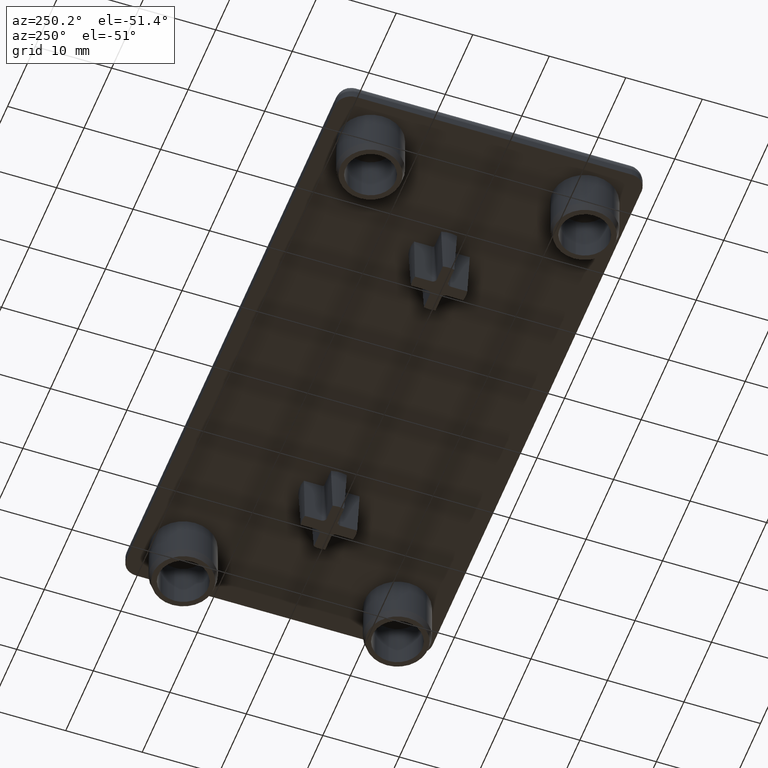
[diagram: clean part render]
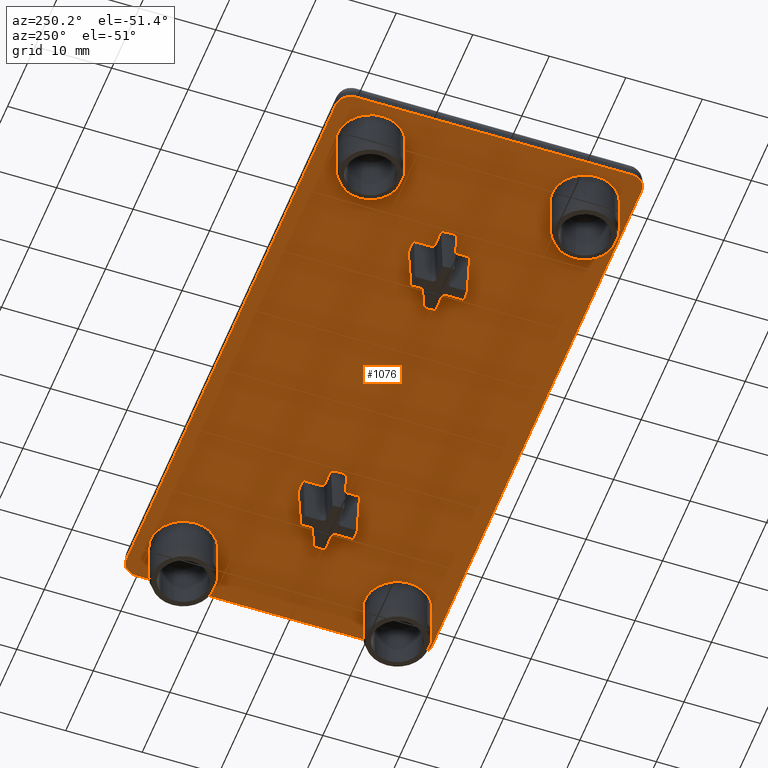
[diagram: same view with one face highlighted and labeled with its STEP entity id]
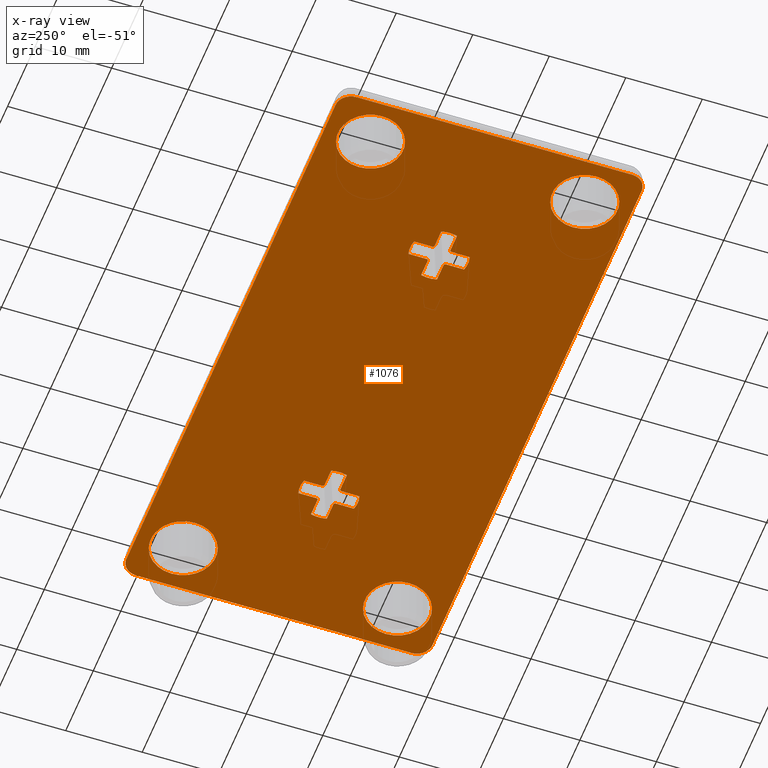
[diagram: x-ray of the same camera — body ghosted, the highlighted face saturated]
A machine part, auxiliary view. The second image highlights one B-rep face of the part: STEP entity #1076.
The next image is the same camera in x-ray: the body ghosted, the highlighted face saturated — about 0% of this face is hidden behind the body in this view.
In plain terms, the highlighted planar face has unit normal (0, 0, 1).
Its self-contained STEP definition (entity closure, byte-faithful):
#40=LINE('',#1699,#108);
#41=LINE('',#1703,#109);
#42=LINE('',#1707,#110);
#43=LINE('',#1710,#111);
#44=LINE('',#1713,#112);
#45=LINE('',#1717,#113);
#46=LINE('',#1721,#114);
#47=LINE('',#1725,#115);
#48=LINE('',#1729,#116);
#49=LINE('',#1733,#117);
#50=LINE('',#1737,#118);
#51=LINE('',#1741,#119);
#52=LINE('',#1747,#120);
#53=LINE('',#1751,#121);
#54=LINE('',#1755,#122);
#55=LINE('',#1759,#123);
#56=LINE('',#1763,#124);
#57=LINE('',#1767,#125);
#58=LINE('',#1771,#126);
#59=LINE('',#1774,#127);
#108=VECTOR('',#1366,36.);
#109=VECTOR('',#1369,76.);
#110=VECTOR('',#1372,36.);
#111=VECTOR('',#1375,76.);
#112=VECTOR('',#1376,2.38983223637839);
#113=VECTOR('',#1379,2.38983223637839);
#114=VECTOR('',#1382,2.38983223637839);
#115=VECTOR('',#1385,2.38983223637839);
#116=VECTOR('',#1388,2.38983223637839);
#117=VECTOR('',#1391,2.38983223637839);
#118=VECTOR('',#1394,2.38983223637839);
#119=VECTOR('',#1397,2.38983223637839);
#120=VECTOR('',#1402,2.38983223637839);
#121=VECTOR('',#1405,2.38983223637839);
#122=VECTOR('',#1408,2.38983223637839);
#123=VECTOR('',#1411,2.38983223637839);
#124=VECTOR('',#1414,2.38983223637839);
#125=VECTOR('',#1417,2.38983223637839);
#126=VECTOR('',#1420,2.38983223637839);
#127=VECTOR('',#1423,2.38983223637839);
#179=PLANE('',#1172);
#235=FACE_BOUND('',#351,.T.);
#236=FACE_BOUND('',#352,.T.);
#237=FACE_BOUND('',#353,.T.);
#238=FACE_BOUND('',#354,.T.);
#239=FACE_BOUND('',#355,.T.);
#240=FACE_BOUND('',#356,.T.);
#262=FACE_OUTER_BOUND('',#350,.T.);
#350=EDGE_LOOP('',(#774,#775,#776,#777,#778,#779,#780,#781));
#351=EDGE_LOOP('',(#782));
#352=EDGE_LOOP('',(#783));
#353=EDGE_LOOP('',(#784));
#354=EDGE_LOOP('',(#785,#786,#787,#788,#789,#790,#791,#792,#793,#794,#795,
#796,#797,#798,#799,#800));
#355=EDGE_LOOP('',(#801,#802,#803,#804,#805,#806,#807,#808,#809,#810,#811,
#812,#813,#814,#815,#816));
#356=EDGE_LOOP('',(#817));
#409=CIRCLE('',#1133,4.25);
#414=CIRCLE('',#1142,4.25);
#419=CIRCLE('',#1151,4.25);
#424=CIRCLE('',#1163,4.25);
#429=CIRCLE('',#1173,2.);
#430=CIRCLE('',#1174,2.);
#431=CIRCLE('',#1175,2.);
#432=CIRCLE('',#1176,2.);
#433=CIRCLE('',#1177,0.216203871094672);
#434=CIRCLE('',#1178,3.78379612890533);
#435=CIRCLE('',#1179,0.216203871094672);
#436=CIRCLE('',#1180,3.78379612890533);
#437=CIRCLE('',#1181,0.216203871094672);
#438=CIRCLE('',#1182,3.78379612890533);
#439=CIRCLE('',#1183,0.216203871094672);
#440=CIRCLE('',#1184,3.78379612890533);
#441=CIRCLE('',#1185,3.78379612890533);
#442=CIRCLE('',#1186,0.216203871094672);
#443=CIRCLE('',#1187,3.78379612890533);
#444=CIRCLE('',#1188,0.216203871094672);
#445=CIRCLE('',#1189,3.78379612890533);
#446=CIRCLE('',#1190,0.216203871094672);
#447=CIRCLE('',#1191,3.78379612890533);
#448=CIRCLE('',#1192,0.216203871094672);
#477=VERTEX_POINT('',#1626);
#482=VERTEX_POINT('',#1640);
#487=VERTEX_POINT('',#1654);
#492=VERTEX_POINT('',#1671);
#501=VERTEX_POINT('',#1695);
#502=VERTEX_POINT('',#1696);
#503=VERTEX_POINT('',#1698);
#504=VERTEX_POINT('',#1700);
#505=VERTEX_POINT('',#1702);
#506=VERTEX_POINT('',#1704);
#507=VERTEX_POINT('',#1706);
#508=VERTEX_POINT('',#1708);
#509=VERTEX_POINT('',#1711);
#510=VERTEX_POINT('',#1712);
#511=VERTEX_POINT('',#1714);
#512=VERTEX_POINT('',#1716);
#513=VERTEX_POINT('',#1718);
#514=VERTEX_POINT('',#1720);
#515=VERTEX_POINT('',#1722);
#516=VERTEX_POINT('',#1724);
#517=VERTEX_POINT('',#1726);
#518=VERTEX_POINT('',#1728);
#519=VERTEX_POINT('',#1730);
#520=VERTEX_POINT('',#1732);
#521=VERTEX_POINT('',#1734);
#522=VERTEX_POINT('',#1736);
#523=VERTEX_POINT('',#1738);
#524=VERTEX_POINT('',#1740);
#525=VERTEX_POINT('',#1743);
#526=VERTEX_POINT('',#1744);
#527=VERTEX_POINT('',#1746);
#528=VERTEX_POINT('',#1748);
#529=VERTEX_POINT('',#1750);
#530=VERTEX_POINT('',#1752);
#531=VERTEX_POINT('',#1754);
#532=VERTEX_POINT('',#1756);
#533=VERTEX_POINT('',#1758);
#534=VERTEX_POINT('',#1760);
#535=VERTEX_POINT('',#1762);
#536=VERTEX_POINT('',#1764);
#537=VERTEX_POINT('',#1766);
#538=VERTEX_POINT('',#1768);
#539=VERTEX_POINT('',#1770);
#540=VERTEX_POINT('',#1772);
#581=EDGE_CURVE('',#477,#477,#409,.T.);
#586=EDGE_CURVE('',#482,#482,#414,.T.);
#591=EDGE_CURVE('',#487,#487,#419,.T.);
#596=EDGE_CURVE('',#492,#492,#424,.T.);
#606=EDGE_CURVE('',#501,#502,#429,.T.);
#607=EDGE_CURVE('',#501,#503,#40,.T.);
#608=EDGE_CURVE('',#504,#503,#430,.T.);
#609=EDGE_CURVE('',#504,#505,#41,.T.);
#610=EDGE_CURVE('',#506,#505,#431,.T.);
#611=EDGE_CURVE('',#506,#507,#42,.T.);
#612=EDGE_CURVE('',#508,#507,#432,.T.);
#613=EDGE_CURVE('',#508,#502,#43,.T.);
#614=EDGE_CURVE('',#509,#510,#44,.F.);
#615=EDGE_CURVE('',#510,#511,#433,.F.);
#616=EDGE_CURVE('',#511,#512,#45,.F.);
#617=EDGE_CURVE('',#512,#513,#434,.F.);
#618=EDGE_CURVE('',#513,#514,#46,.F.);
#619=EDGE_CURVE('',#514,#515,#435,.F.);
#620=EDGE_CURVE('',#515,#516,#47,.F.);
#621=EDGE_CURVE('',#516,#517,#436,.F.);
#622=EDGE_CURVE('',#517,#518,#48,.F.);
#623=EDGE_CURVE('',#518,#519,#437,.F.);
#624=EDGE_CURVE('',#519,#520,#49,.F.);
#625=EDGE_CURVE('',#520,#521,#438,.F.);
#626=EDGE_CURVE('',#521,#522,#50,.F.);
#627=EDGE_CURVE('',#522,#523,#439,.F.);
#628=EDGE_CURVE('',#523,#524,#51,.F.);
#629=EDGE_CURVE('',#524,#509,#440,.F.);
#630=EDGE_CURVE('',#525,#526,#441,.F.);
#631=EDGE_CURVE('',#526,#527,#52,.F.);
#632=EDGE_CURVE('',#527,#528,#442,.F.);
#633=EDGE_CURVE('',#528,#529,#53,.F.);
#634=EDGE_CURVE('',#529,#530,#443,.F.);
#635=EDGE_CURVE('',#530,#531,#54,.F.);
#636=EDGE_CURVE('',#531,#532,#444,.F.);
#637=EDGE_CURVE('',#532,#533,#55,.F.);
#638=EDGE_CURVE('',#533,#534,#445,.F.);
#639=EDGE_CURVE('',#534,#535,#56,.F.);
#640=EDGE_CURVE('',#535,#536,#446,.F.);
#641=EDGE_CURVE('',#536,#537,#57,.F.);
#642=EDGE_CURVE('',#537,#538,#447,.F.);
#643=EDGE_CURVE('',#538,#539,#58,.F.);
#644=EDGE_CURVE('',#539,#540,#448,.F.);
#645=EDGE_CURVE('',#540,#525,#59,.F.);
#774=ORIENTED_EDGE('',*,*,#606,.F.);
#775=ORIENTED_EDGE('',*,*,#607,.T.);
#776=ORIENTED_EDGE('',*,*,#608,.F.);
#777=ORIENTED_EDGE('',*,*,#609,.T.);
#778=ORIENTED_EDGE('',*,*,#610,.F.);
#779=ORIENTED_EDGE('',*,*,#611,.T.);
#780=ORIENTED_EDGE('',*,*,#612,.F.);
#781=ORIENTED_EDGE('',*,*,#613,.T.);
#782=ORIENTED_EDGE('',*,*,#581,.T.);
#783=ORIENTED_EDGE('',*,*,#586,.T.);
#784=ORIENTED_EDGE('',*,*,#591,.T.);
#785=ORIENTED_EDGE('',*,*,#614,.T.);
#786=ORIENTED_EDGE('',*,*,#615,.T.);
#787=ORIENTED_EDGE('',*,*,#616,.T.);
#788=ORIENTED_EDGE('',*,*,#617,.T.);
#789=ORIENTED_EDGE('',*,*,#618,.T.);
#790=ORIENTED_EDGE('',*,*,#619,.T.);
#791=ORIENTED_EDGE('',*,*,#620,.T.);
#792=ORIENTED_EDGE('',*,*,#621,.T.);
#793=ORIENTED_EDGE('',*,*,#622,.T.);
#794=ORIENTED_EDGE('',*,*,#623,.T.);
#795=ORIENTED_EDGE('',*,*,#624,.T.);
#796=ORIENTED_EDGE('',*,*,#625,.T.);
#797=ORIENTED_EDGE('',*,*,#626,.T.);
#798=ORIENTED_EDGE('',*,*,#627,.T.);
#799=ORIENTED_EDGE('',*,*,#628,.T.);
#800=ORIENTED_EDGE('',*,*,#629,.T.);
#801=ORIENTED_EDGE('',*,*,#630,.T.);
#802=ORIENTED_EDGE('',*,*,#631,.T.);
#803=ORIENTED_EDGE('',*,*,#632,.T.);
#804=ORIENTED_EDGE('',*,*,#633,.T.);
#805=ORIENTED_EDGE('',*,*,#634,.T.);
#806=ORIENTED_EDGE('',*,*,#635,.T.);
#807=ORIENTED_EDGE('',*,*,#636,.T.);
#808=ORIENTED_EDGE('',*,*,#637,.T.);
#809=ORIENTED_EDGE('',*,*,#638,.T.);
#810=ORIENTED_EDGE('',*,*,#639,.T.);
#811=ORIENTED_EDGE('',*,*,#640,.T.);
#812=ORIENTED_EDGE('',*,*,#641,.T.);
#813=ORIENTED_EDGE('',*,*,#642,.T.);
#814=ORIENTED_EDGE('',*,*,#643,.T.);
#815=ORIENTED_EDGE('',*,*,#644,.T.);
#816=ORIENTED_EDGE('',*,*,#645,.T.);
#817=ORIENTED_EDGE('',*,*,#596,.T.);
#1076=ADVANCED_FACE('',(#262,#235,#236,#237,#238,#239,#240),#179,.F.);
#1133=AXIS2_PLACEMENT_3D('',#1627,#1279,#1280);
#1142=AXIS2_PLACEMENT_3D('',#1641,#1297,#1298);
#1151=AXIS2_PLACEMENT_3D('',#1655,#1315,#1316);
#1163=AXIS2_PLACEMENT_3D('',#1672,#1339,#1340);
#1172=AXIS2_PLACEMENT_3D('',#1694,#1362,#1363);
#1173=AXIS2_PLACEMENT_3D('',#1697,#1364,#1365);
#1174=AXIS2_PLACEMENT_3D('',#1701,#1367,#1368);
#1175=AXIS2_PLACEMENT_3D('',#1705,#1370,#1371);
#1176=AXIS2_PLACEMENT_3D('',#1709,#1373,#1374);
#1177=AXIS2_PLACEMENT_3D('',#1715,#1377,#1378);
#1178=AXIS2_PLACEMENT_3D('',#1719,#1380,#1381);
#1179=AXIS2_PLACEMENT_3D('',#1723,#1383,#1384);
#1180=AXIS2_PLACEMENT_3D('',#1727,#1386,#1387);
#1181=AXIS2_PLACEMENT_3D('',#1731,#1389,#1390);
#1182=AXIS2_PLACEMENT_3D('',#1735,#1392,#1393);
#1183=AXIS2_PLACEMENT_3D('',#1739,#1395,#1396);
#1184=AXIS2_PLACEMENT_3D('',#1742,#1398,#1399);
#1185=AXIS2_PLACEMENT_3D('',#1745,#1400,#1401);
#1186=AXIS2_PLACEMENT_3D('',#1749,#1403,#1404);
#1187=AXIS2_PLACEMENT_3D('',#1753,#1406,#1407);
#1188=AXIS2_PLACEMENT_3D('',#1757,#1409,#1410);
#1189=AXIS2_PLACEMENT_3D('',#1761,#1412,#1413);
#1190=AXIS2_PLACEMENT_3D('',#1765,#1415,#1416);
#1191=AXIS2_PLACEMENT_3D('',#1769,#1418,#1419);
#1192=AXIS2_PLACEMENT_3D('',#1773,#1421,#1422);
#1279=DIRECTION('center_axis',(0.,0.,1.));
#1280=DIRECTION('ref_axis',(-1.,0.,0.));
#1297=DIRECTION('center_axis',(0.,0.,1.));
#1298=DIRECTION('ref_axis',(-1.,0.,0.));
#1315=DIRECTION('center_axis',(0.,0.,1.));
#1316=DIRECTION('ref_axis',(-1.,0.,0.));
#1339=DIRECTION('center_axis',(0.,0.,1.));
#1340=DIRECTION('ref_axis',(-1.,0.,0.));
#1362=DIRECTION('center_axis',(0.,0.,1.));
#1363=DIRECTION('ref_axis',(1.,0.,0.));
#1364=DIRECTION('center_axis',(0.,0.,1.));
#1365=DIRECTION('ref_axis',(0.707106781186548,0.707106781186547,0.));
#1366=DIRECTION('',(1.11022302462516E-16,-1.,0.));
#1367=DIRECTION('center_axis',(0.,0.,1.));
#1368=DIRECTION('ref_axis',(0.707106781186548,-0.707106781186547,0.));
#1369=DIRECTION('',(-1.,-1.11022302462516E-16,0.));
#1370=DIRECTION('center_axis',(0.,0.,1.));
#1371=DIRECTION('ref_axis',(-0.707106781186548,-0.707106781186547,0.));
#1372=DIRECTION('',(1.11022302462516E-16,1.,0.));
#1373=DIRECTION('center_axis',(0.,0.,1.));
#1374=DIRECTION('ref_axis',(-0.707106781186548,0.707106781186547,0.));
#1375=DIRECTION('',(1.,2.77555756156289E-16,0.));
#1376=DIRECTION('',(0.,-1.,0.));
#1377=DIRECTION('center_axis',(0.,0.,1.));
#1378=DIRECTION('ref_axis',(0.,-1.,0.));
#1379=DIRECTION('',(-1.,0.,0.));
#1380=DIRECTION('center_axis',(0.,0.,-1.));
#1381=DIRECTION('ref_axis',(1.,0.,0.));
#1382=DIRECTION('',(1.,-6.39913168105322E-17,0.));
#1383=DIRECTION('center_axis',(0.,0.,1.));
#1384=DIRECTION('ref_axis',(1.,0.,0.));
#1385=DIRECTION('',(0.,-1.,0.));
#1386=DIRECTION('center_axis',(0.,0.,-1.));
#1387=DIRECTION('ref_axis',(1.,0.,0.));
#1388=DIRECTION('',(0.,1.,0.));
#1389=DIRECTION('center_axis',(0.,0.,1.));
#1390=DIRECTION('ref_axis',(0.,1.,0.));
#1391=DIRECTION('',(1.,0.,0.));
#1392=DIRECTION('center_axis',(0.,0.,-1.));
#1393=DIRECTION('ref_axis',(1.,0.,0.));
#1394=DIRECTION('',(-1.,0.,0.));
#1395=DIRECTION('center_axis',(0.,0.,1.));
#1396=DIRECTION('ref_axis',(-1.,0.,0.));
#1397=DIRECTION('',(0.,1.,0.));
#1398=DIRECTION('center_axis',(0.,0.,-1.));
#1399=DIRECTION('ref_axis',(1.,0.,0.));
#1400=DIRECTION('center_axis',(0.,0.,-1.));
#1401=DIRECTION('ref_axis',(1.,0.,0.));
#1402=DIRECTION('',(0.,1.,0.));
#1403=DIRECTION('center_axis',(0.,0.,1.));
#1404=DIRECTION('ref_axis',(0.,1.,0.));
#1405=DIRECTION('',(1.,0.,0.));
#1406=DIRECTION('center_axis',(0.,0.,-1.));
#1407=DIRECTION('ref_axis',(1.,0.,0.));
#1408=DIRECTION('',(-1.,0.,0.));
#1409=DIRECTION('center_axis',(0.,0.,1.));
#1410=DIRECTION('ref_axis',(-1.,0.,0.));
#1411=DIRECTION('',(0.,1.,0.));
#1412=DIRECTION('center_axis',(0.,0.,-1.));
#1413=DIRECTION('ref_axis',(1.,0.,0.));
#1414=DIRECTION('',(0.,-1.,0.));
#1415=DIRECTION('center_axis',(0.,0.,1.));
#1416=DIRECTION('ref_axis',(0.,-1.,0.));
#1417=DIRECTION('',(-1.,0.,0.));
#1418=DIRECTION('center_axis',(0.,0.,-1.));
#1419=DIRECTION('ref_axis',(1.,0.,0.));
#1420=DIRECTION('',(1.,-6.39913168105322E-17,0.));
#1421=DIRECTION('center_axis',(0.,0.,1.));
#1422=DIRECTION('ref_axis',(1.,0.,0.));
#1423=DIRECTION('',(0.,-1.,0.));
#1626=CARTESIAN_POINT('',(-29.75,-14.,0.));
#1627=CARTESIAN_POINT('Origin',(-34.,-14.,0.));
#1640=CARTESIAN_POINT('',(38.25,-14.,0.));
#1641=CARTESIAN_POINT('Origin',(34.,-14.,0.));
#1654=CARTESIAN_POINT('',(-29.75,14.,0.));
#1655=CARTESIAN_POINT('Origin',(-34.,14.,0.));
#1671=CARTESIAN_POINT('',(38.25,14.,0.));
#1672=CARTESIAN_POINT('Origin',(34.,14.,0.));
#1694=CARTESIAN_POINT('Origin',(2.22044604925031E-15,-4.81096644004234E-15,
0.));
#1695=CARTESIAN_POINT('',(40.,18.,0.));
#1696=CARTESIAN_POINT('',(38.,20.,0.));
#1697=CARTESIAN_POINT('Origin',(38.,18.,0.));
#1698=CARTESIAN_POINT('',(40.,-18.,0.));
#1699=CARTESIAN_POINT('',(40.,20.,0.));
#1700=CARTESIAN_POINT('',(38.,-20.,0.));
#1701=CARTESIAN_POINT('Origin',(38.,-18.,0.));
#1702=CARTESIAN_POINT('',(-38.,-20.,0.));
#1703=CARTESIAN_POINT('',(40.,-20.,0.));
#1704=CARTESIAN_POINT('',(-40.,-18.,0.));
#1705=CARTESIAN_POINT('Origin',(-38.,-18.,0.));
#1706=CARTESIAN_POINT('',(-40.,18.,0.));
#1707=CARTESIAN_POINT('',(-40.,-20.,0.));
#1708=CARTESIAN_POINT('',(-38.,20.,0.));
#1709=CARTESIAN_POINT('Origin',(-38.,18.,0.));
#1710=CARTESIAN_POINT('',(-40.,20.,0.));
#1711=CARTESIAN_POINT('',(-18.9662038710947,-3.63983223637839,0.));
#1712=CARTESIAN_POINT('',(-18.9662038710947,-1.25,0.));
#1713=CARTESIAN_POINT('',(-18.9662038710947,-1.70934929139717,0.));
#1714=CARTESIAN_POINT('',(-18.75,-1.03379612890533,0.));
#1715=CARTESIAN_POINT('Origin',(-18.75,-1.25,0.));
#1716=CARTESIAN_POINT('',(-16.3601677636216,-1.03379612890533,-1.11022302462516E-15));
#1717=CARTESIAN_POINT('',(-9.375,-1.03379612890533,-5.55111512312578E-16));
#1718=CARTESIAN_POINT('',(-16.3601677636216,1.03379612890533,0.));
#1719=CARTESIAN_POINT('Origin',(-20.,0.,0.));
#1720=CARTESIAN_POINT('',(-18.75,1.03379612890533,0.));
#1721=CARTESIAN_POINT('',(-8.29065070860283,1.03379612890533,-5.55111512312578E-16));
#1722=CARTESIAN_POINT('',(-18.9662038710947,1.25,0.));
#1723=CARTESIAN_POINT('Origin',(-18.75,1.25,0.));
#1724=CARTESIAN_POINT('',(-18.9662038710947,3.63983223637839,1.11022302462516E-15));
#1725=CARTESIAN_POINT('',(-18.9662038710947,0.624999999999998,0.));
#1726=CARTESIAN_POINT('',(-21.0337961289053,3.63983223637839,0.));
#1727=CARTESIAN_POINT('Origin',(-20.,0.,0.));
#1728=CARTESIAN_POINT('',(-21.0337961289053,1.25,0.));
#1729=CARTESIAN_POINT('',(-21.0337961289053,1.70934929139717,0.));
#1730=CARTESIAN_POINT('',(-21.25,1.03379612890533,0.));
#1731=CARTESIAN_POINT('Origin',(-21.25,1.25,0.));
#1732=CARTESIAN_POINT('',(-23.6398322363784,1.03379612890533,-1.11022302462516E-15));
#1733=CARTESIAN_POINT('',(-10.625,1.03379612890533,-5.55111512312578E-16));
#1734=CARTESIAN_POINT('',(-23.6398322363784,-1.03379612890533,0.));
#1735=CARTESIAN_POINT('Origin',(-20.,0.,0.));
#1736=CARTESIAN_POINT('',(-21.25,-1.03379612890533,0.));
#1737=CARTESIAN_POINT('',(-11.7093492913972,-1.03379612890533,-5.55111512312578E-16));
#1738=CARTESIAN_POINT('',(-21.0337961289053,-1.25,0.));
#1739=CARTESIAN_POINT('Origin',(-21.25,-1.25,0.));
#1740=CARTESIAN_POINT('',(-21.0337961289053,-3.63983223637839,1.11022302462516E-15));
#1741=CARTESIAN_POINT('',(-21.0337961289053,-0.625000000000002,0.));
#1742=CARTESIAN_POINT('Origin',(-20.,0.,0.));
#1743=CARTESIAN_POINT('',(21.0337961289053,3.63983223637839,1.11022302462516E-15));
#1744=CARTESIAN_POINT('',(18.9662038710947,3.63983223635428,-4.44089209850063E-14));
#1745=CARTESIAN_POINT('Origin',(20.,0.,0.));
#1746=CARTESIAN_POINT('',(18.9662038710947,1.25,0.));
#1747=CARTESIAN_POINT('',(18.9662038710947,1.70934929139717,0.));
#1748=CARTESIAN_POINT('',(18.75,1.03379612890533,0.));
#1749=CARTESIAN_POINT('Origin',(18.75,1.25,0.));
#1750=CARTESIAN_POINT('',(16.3601677636216,1.03379612890533,-1.11022302462516E-15));
#1751=CARTESIAN_POINT('',(9.375,1.03379612890533,-5.55111512312578E-16));
#1752=CARTESIAN_POINT('',(16.3601677636216,-1.03379612890533,0.));
#1753=CARTESIAN_POINT('Origin',(20.,0.,0.));
#1754=CARTESIAN_POINT('',(18.75,-1.03379612890533,0.));
#1755=CARTESIAN_POINT('',(8.29065070860283,-1.03379612890533,-5.55111512312578E-16));
#1756=CARTESIAN_POINT('',(18.9662038710947,-1.25,0.));
#1757=CARTESIAN_POINT('Origin',(18.75,-1.25,0.));
#1758=CARTESIAN_POINT('',(18.9662038710947,-3.63983223637839,1.11022302462516E-15));
#1759=CARTESIAN_POINT('',(18.9662038710947,-0.625000000000002,0.));
#1760=CARTESIAN_POINT('',(21.0337961289053,-3.63983223637839,0.));
#1761=CARTESIAN_POINT('Origin',(20.,0.,0.));
#1762=CARTESIAN_POINT('',(21.0337961289053,-1.25,0.));
#1763=CARTESIAN_POINT('',(21.0337961289053,-1.70934929139717,0.));
#1764=CARTESIAN_POINT('',(21.25,-1.03379612890533,0.));
#1765=CARTESIAN_POINT('Origin',(21.25,-1.25,0.));
#1766=CARTESIAN_POINT('',(23.6398322363784,-1.03379612890533,-1.11022302462516E-15));
#1767=CARTESIAN_POINT('',(10.625,-1.03379612890533,-5.55111512312578E-16));
#1768=CARTESIAN_POINT('',(23.6398322363784,1.03379612890533,0.));
#1769=CARTESIAN_POINT('Origin',(20.,0.,0.));
#1770=CARTESIAN_POINT('',(21.25,1.03379612890533,0.));
#1771=CARTESIAN_POINT('',(11.7093492913972,1.03379612890533,-5.55111512312578E-16));
#1772=CARTESIAN_POINT('',(21.0337961289053,1.25,0.));
#1773=CARTESIAN_POINT('Origin',(21.25,1.25,0.));
#1774=CARTESIAN_POINT('',(21.0337961289053,0.624999999999998,0.));